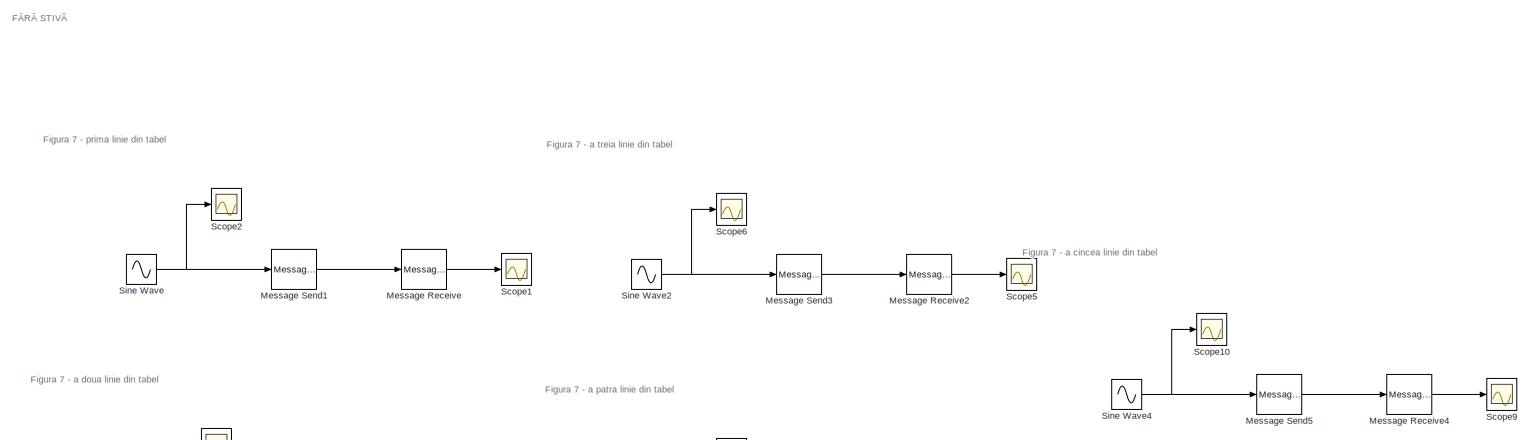
[diagram: root canvas - part 1/3, full width, top band]
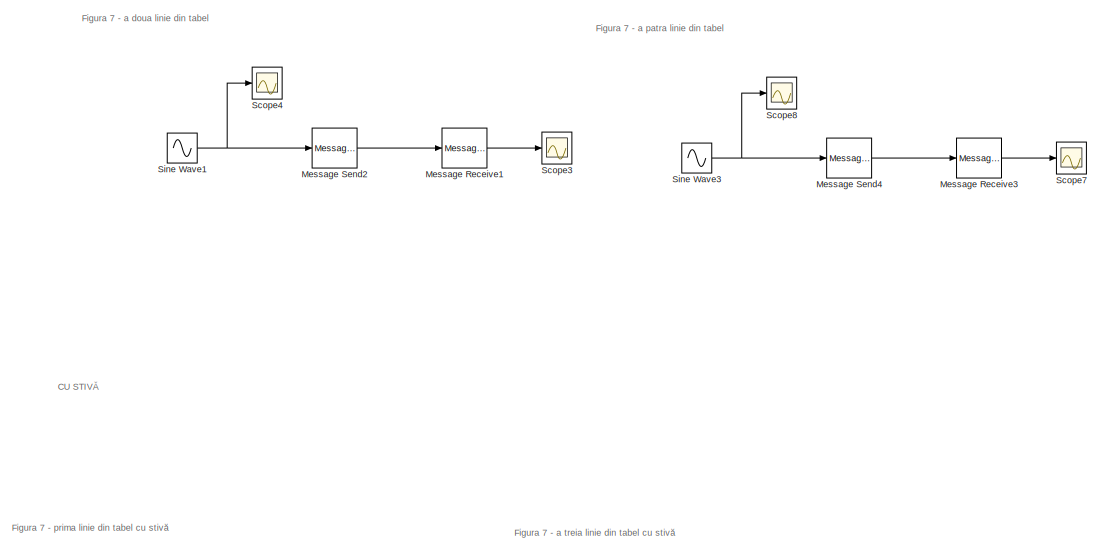
[diagram: root canvas - part 2/3, central region]
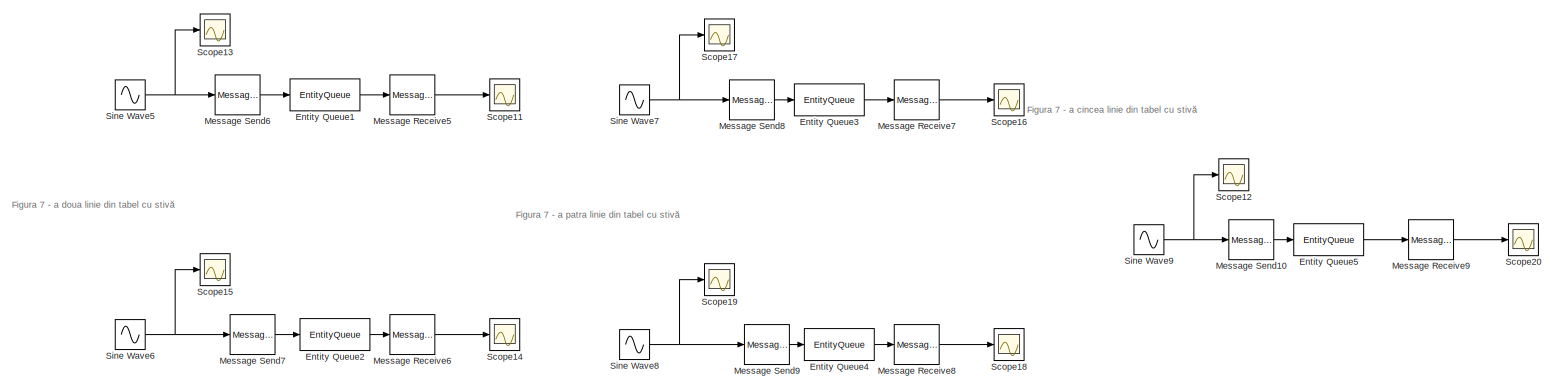
[diagram: root canvas - part 3/3, full width, bottom band]
MODEL slx_587eda505b24
KIND model
CONFIG AbsTol = auto
CONFIG FixedStep = auto
CONFIG MaxStep = auto
CONFIG MinStep = auto
CONFIG RelTol = 1e-3
CONFIG SampleTimeConstraint = Unconstrained
CONFIG Solver = VariableStepDiscrete
CONFIG SolverMode = Auto
CONFIG SolverName = VariableStepDiscrete
CONFIG StartTime = 0.0
CONFIG StopTime = 10.0
BLOCK [EntityQueue] Entity Queue1
  InputPortMap = u0
  InputPortMessageModes = m
  OutputPortMap = o5
  OutputPortMessageModes = m
  Ports = [1, 1]
BLOCK [EntityQueue] Entity Queue2
  InputPortMap = u0
  InputPortMessageModes = m
  OutputPortMap = o5
  OutputPortMessageModes = m
  Ports = [1, 1]
BLOCK [EntityQueue] Entity Queue3
  InputPortMap = u0
  InputPortMessageModes = m
  OutputPortMap = o5
  OutputPortMessageModes = m
  Ports = [1, 1]
BLOCK [EntityQueue] Entity Queue4
  InputPortMap = u0
  InputPortMessageModes = m
  OutputPortMap = o5
  OutputPortMessageModes = m
  Ports = [1, 1]
BLOCK [EntityQueue] Entity Queue5
  InputPortMap = u0
  InputPortMessageModes = m
  OutputPortMap = o5
  OutputPortMessageModes = m
  Ports = [1, 1]
BLOCK [MessageReceive] Message Receive
  InputPortMap = u0
  InputPortMessageModes = m
  OutputPortMap = o1
  Ports = [1, 1]
  SampleTime = 0.1
BLOCK [MessageReceive] Message Receive1
  InputPortMap = u0
  InputPortMessageModes = m
  OutputPortMap = o1
  Ports = [1, 1]
  SampleTime = 0.2
BLOCK [MessageReceive] Message Receive2
  InputPortMap = u0
  InputPortMessageModes = m
  OutputPortMap = o1
  Ports = [1, 1]
  QueueLength = 32
  SampleTime = 0.2
BLOCK [MessageReceive] Message Receive3
  InputPortMap = u0
  InputPortMessageModes = m
  OutputPortMap = o1
  Ports = [1, 1]
  SampleTime = 0.2
BLOCK [MessageReceive] Message Receive4
  InputPortMap = u0
  InputPortMessageModes = m
  OutputPortMap = o1
  Ports = [1, 1]
  SampleTime = 0.1
BLOCK [MessageReceive] Message Receive5
  InputPortMap = u0
  InputPortMessageModes = m
  OutputPortMap = o1
  Ports = [1, 1]
  SampleTime = 0.1
BLOCK [MessageReceive] Message Receive6
  InputPortMap = u0
  InputPortMessageModes = m
  OutputPortMap = o1
  Ports = [1, 1]
  SampleTime = 0.2
BLOCK [MessageReceive] Message Receive7
  InputPortMap = u0
  InputPortMessageModes = m
  OutputPortMap = o1
  Ports = [1, 1]
  QueueLength = 32
  SampleTime = 0.2
BLOCK [MessageReceive] Message Receive8
  InputPortMap = u0
  InputPortMessageModes = m
  OutputPortMap = o1
  Ports = [1, 1]
  SampleTime = 0.2
BLOCK [MessageReceive] Message Receive9
  InputPortMap = u0
  InputPortMessageModes = m
  OutputPortMap = o1
  Ports = [1, 1]
  SampleTime = 0.1
BLOCK [MessageSend] Message Send1
  InputPortMap = u1
  OutputPortMessageModes = m
  Ports = [1, 1]
BLOCK [MessageSend] Message Send10
  InputPortMap = u1
  OutputPortMessageModes = m
  Ports = [1, 1]
BLOCK [MessageSend] Message Send2
  InputPortMap = u1
  OutputPortMessageModes = m
  Ports = [1, 1]
BLOCK [MessageSend] Message Send3
  InputPortMap = u1
  OutputPortMessageModes = m
  Ports = [1, 1]
BLOCK [MessageSend] Message Send4
  InputPortMap = u1
  OutputPortMessageModes = m
  Ports = [1, 1]
BLOCK [MessageSend] Message Send5
  InputPortMap = u1
  OutputPortMessageModes = m
  Ports = [1, 1]
BLOCK [MessageSend] Message Send6
  InputPortMap = u1
  OutputPortMessageModes = m
  Ports = [1, 1]
BLOCK [MessageSend] Message Send7
  InputPortMap = u1
  OutputPortMessageModes = m
  Ports = [1, 1]
BLOCK [MessageSend] Message Send8
  InputPortMap = u1
  OutputPortMessageModes = m
  Ports = [1, 1]
BLOCK [MessageSend] Message Send9
  InputPortMap = u1
  OutputPortMessageModes = m
  Ports = [1, 1]
BLOCK [Scope] Scope1
  Ports = [1]
  ScopeSpecificationString = Simulink.scopes.TimeScopeBlockCfg('CurrentConfiguration', extmgr.ConfigurationSet(extmgr.Configuration('Core','General UI',true),extmgr.Configuration('Core','Source UI',true),extmgr.Configuration('Sources','WiredSimulink',true,'DataLoggingVariableName','ScopeData1'),extmgr.Configuration('Visuals','Time Domain',true,'SerializedDisplays',{struct('MinYLimReal','-0.05438','MaxYLimReal','0.2024','YLabe...<+1534ch>
BLOCK [Scope] Scope10
  Ports = [1]
  ScopeSpecificationString = Simulink.scopes.TimeScopeBlockCfg('CurrentConfiguration', extmgr.ConfigurationSet(extmgr.Configuration('Core','General UI',true),extmgr.Configuration('Core','Source UI',true),extmgr.Configuration('Sources','WiredSimulink',true,'DataLoggingVariableName','ScopeData9'),extmgr.Configuration('Visuals','Time Domain',true,'SerializedDisplays',{struct('MinYLimReal','-1.24563','MaxYLimReal','1.24904','YLab...<+1498ch>
BLOCK [Scope] Scope11
  Ports = [1]
  ScopeSpecificationString = Simulink.scopes.TimeScopeBlockCfg('CurrentConfiguration', extmgr.ConfigurationSet(extmgr.Configuration('Core','General UI',true),extmgr.Configuration('Core','Source UI',true),extmgr.Configuration('Sources','WiredSimulink',true,'DataLoggingVariableName','ScopeData11'),extmgr.Configuration('Visuals','Time Domain',true,'SerializedDisplays',{struct('MinYLimReal','-1.24986','MaxYLimReal','1.24951','YLa...<+1540ch>
BLOCK [Scope] Scope12
  Ports = [1]
  ScopeSpecificationString = Simulink.scopes.TimeScopeBlockCfg('CurrentConfiguration', extmgr.ConfigurationSet(extmgr.Configuration('Core','General UI',true),extmgr.Configuration('Core','Source UI',true),extmgr.Configuration('Sources','WiredSimulink',true,'DataLoggingVariableName','ScopeData12'),extmgr.Configuration('Visuals','Time Domain',true,'SerializedDisplays',{struct('MinYLimReal','-1.24563','MaxYLimReal','1.24904','YLa...<+1525ch>
BLOCK [Scope] Scope13
  Ports = [1]
  ScopeSpecificationString = Simulink.scopes.TimeScopeBlockCfg('CurrentConfiguration', extmgr.ConfigurationSet(extmgr.Configuration('Core','General UI',true),extmgr.Configuration('Core','Source UI',true),extmgr.Configuration('Sources','WiredSimulink',true,'DataLoggingVariableName','ScopeData13'),extmgr.Configuration('Visuals','Time Domain',true,'SerializedDisplays',{struct('MinYLimReal','-1.24986','MaxYLimReal','1.24951','YLa...<+1518ch>
BLOCK [Scope] Scope14
  Ports = [1]
  ScopeSpecificationString = Simulink.scopes.TimeScopeBlockCfg('CurrentConfiguration', extmgr.ConfigurationSet(extmgr.Configuration('Core','General UI',true),extmgr.Configuration('Core','Source UI',true),extmgr.Configuration('Sources','WiredSimulink',true,'DataLoggingVariableName','ScopeData14'),extmgr.Configuration('Visuals','Time Domain',true,'SerializedDisplays',{struct('MinYLimReal','-1.24986','MaxYLimReal','1.24951','YLa...<+1517ch>
BLOCK [Scope] Scope15
  Ports = [1]
  ScopeSpecificationString = Simulink.scopes.TimeScopeBlockCfg('CurrentConfiguration', extmgr.ConfigurationSet(extmgr.Configuration('Core','General UI',true),extmgr.Configuration('Core','Source UI',true),extmgr.Configuration('Sources','WiredSimulink',true,'DataLoggingVariableName','ScopeData15'),extmgr.Configuration('Visuals','Time Domain',true,'SerializedDisplays',{struct('MinYLimReal','-1.24986','MaxYLimReal','1.24951','YLa...<+1497ch>
BLOCK [Scope] Scope16
  Ports = [1]
  ScopeSpecificationString = Simulink.scopes.TimeScopeBlockCfg('CurrentConfiguration', extmgr.ConfigurationSet(extmgr.Configuration('Core','General UI',true),extmgr.Configuration('Core','Source UI',true),extmgr.Configuration('Sources','WiredSimulink',true,'DataLoggingVariableName','ScopeData16'),extmgr.Configuration('Visuals','Time Domain',true,'SerializedDisplays',{struct('MinYLimReal','-1.24986','MaxYLimReal','1.24951','YLa...<+1543ch>
BLOCK [Scope] Scope17
  Ports = [1]
  ScopeSpecificationString = Simulink.scopes.TimeScopeBlockCfg('CurrentConfiguration', extmgr.ConfigurationSet(extmgr.Configuration('Core','General UI',true),extmgr.Configuration('Core','Source UI',true),extmgr.Configuration('Sources','WiredSimulink',true,'DataLoggingVariableName','ScopeData17'),extmgr.Configuration('Visuals','Time Domain',true,'SerializedDisplays',{struct('MinYLimReal','-1.24986','MaxYLimReal','1.24951','YLa...<+1523ch>
BLOCK [Scope] Scope18
  Ports = [1]
  ScopeSpecificationString = Simulink.scopes.TimeScopeBlockCfg('CurrentConfiguration', extmgr.ConfigurationSet(extmgr.Configuration('Core','General UI',true),extmgr.Configuration('Core','Source UI',true),extmgr.Configuration('Sources','WiredSimulink',true,'DataLoggingVariableName','ScopeData18'),extmgr.Configuration('Visuals','Time Domain',true,'SerializedDisplays',{struct('MinYLimReal','-1.24563','MaxYLimReal','1.24904','YLa...<+1517ch>
BLOCK [Scope] Scope19
  Ports = [1]
  ScopeSpecificationString = Simulink.scopes.TimeScopeBlockCfg('CurrentConfiguration', extmgr.ConfigurationSet(extmgr.Configuration('Core','General UI',true),extmgr.Configuration('Core','Source UI',true),extmgr.Configuration('Sources','WiredSimulink',true,'DataLoggingVariableName','ScopeData19'),extmgr.Configuration('Visuals','Time Domain',true,'SerializedDisplays',{struct('MinYLimReal','-1.24563','MaxYLimReal','1.24904','YLa...<+1498ch>
BLOCK [Scope] Scope2
  Ports = [1]
  ScopeSpecificationString = Simulink.scopes.TimeScopeBlockCfg('CurrentConfiguration', extmgr.ConfigurationSet(extmgr.Configuration('Core','General UI',true),extmgr.Configuration('Core','Source UI',true),extmgr.Configuration('Sources','WiredSimulink',true,'DataLoggingVariableName','ScopeData2'),extmgr.Configuration('Visuals','Time Domain',true,'SerializedDisplays',{struct('MinYLimReal','-0.01217','MaxYLimReal','0.12103','YLab...<+1516ch>
BLOCK [Scope] Scope20
  Ports = [1]
  ScopeSpecificationString = Simulink.scopes.TimeScopeBlockCfg('CurrentConfiguration', extmgr.ConfigurationSet(extmgr.Configuration('Core','General UI',true),extmgr.Configuration('Core','Source UI',true),extmgr.Configuration('Sources','WiredSimulink',true,'DataLoggingVariableName','ScopeData20'),extmgr.Configuration('Visuals','Time Domain',true,'SerializedDisplays',{struct('MinYLimReal','-1.24563','MaxYLimReal','1.24904','YLa...<+1543ch>
BLOCK [Scope] Scope3
  Ports = [1]
  ScopeSpecificationString = Simulink.scopes.TimeScopeBlockCfg('CurrentConfiguration', extmgr.ConfigurationSet(extmgr.Configuration('Core','General UI',true),extmgr.Configuration('Core','Source UI',true),extmgr.Configuration('Sources','WiredSimulink',true,'DataLoggingVariableName','ScopeData3'),extmgr.Configuration('Visuals','Time Domain',true,'SerializedDisplays',{struct('MinYLimReal','-1.24986','MaxYLimReal','1.24951','YLab...<+1516ch>
BLOCK [Scope] Scope4
  Ports = [1]
  ScopeSpecificationString = Simulink.scopes.TimeScopeBlockCfg('CurrentConfiguration', extmgr.ConfigurationSet(extmgr.Configuration('Core','General UI',true),extmgr.Configuration('Core','Source UI',true),extmgr.Configuration('Sources','WiredSimulink',true,'DataLoggingVariableName','ScopeData4'),extmgr.Configuration('Visuals','Time Domain',true,'SerializedDisplays',{struct('MinYLimReal','-1.24986','MaxYLimReal','1.24951','YLab...<+1496ch>
BLOCK [Scope] Scope5
  Ports = [1]
  ScopeSpecificationString = Simulink.scopes.TimeScopeBlockCfg('CurrentConfiguration', extmgr.ConfigurationSet(extmgr.Configuration('Core','General UI',true),extmgr.Configuration('Core','Source UI',true),extmgr.Configuration('Sources','WiredSimulink',true,'DataLoggingVariableName','ScopeData5'),extmgr.Configuration('Visuals','Time Domain',true,'SerializedDisplays',{struct('MinYLimReal','-1.24986','MaxYLimReal','1.24951','YLab...<+1516ch>
BLOCK [Scope] Scope6
  Ports = [1]
  ScopeSpecificationString = Simulink.scopes.TimeScopeBlockCfg('CurrentConfiguration', extmgr.ConfigurationSet(extmgr.Configuration('Core','General UI',true),extmgr.Configuration('Core','Source UI',true),extmgr.Configuration('Sources','WiredSimulink',true,'DataLoggingVariableName','ScopeData6'),extmgr.Configuration('Visuals','Time Domain',true,'SerializedDisplays',{struct('MinYLimReal','-1.24986','MaxYLimReal','1.24951','YLab...<+1496ch>
BLOCK [Scope] Scope7
  Ports = [1]
  ScopeSpecificationString = Simulink.scopes.TimeScopeBlockCfg('CurrentConfiguration', extmgr.ConfigurationSet(extmgr.Configuration('Core','General UI',true),extmgr.Configuration('Core','Source UI',true),extmgr.Configuration('Sources','WiredSimulink',true,'DataLoggingVariableName','ScopeData7'),extmgr.Configuration('Visuals','Time Domain',true,'SerializedDisplays',{struct('MinYLimReal','-1.24563','MaxYLimReal','1.24904','YLab...<+1516ch>
BLOCK [Scope] Scope8
  Ports = [1]
  ScopeSpecificationString = Simulink.scopes.TimeScopeBlockCfg('CurrentConfiguration', extmgr.ConfigurationSet(extmgr.Configuration('Core','General UI',true),extmgr.Configuration('Core','Source UI',true),extmgr.Configuration('Sources','WiredSimulink',true,'DataLoggingVariableName','ScopeData8'),extmgr.Configuration('Visuals','Time Domain',true,'SerializedDisplays',{struct('MinYLimReal','-1.24563','MaxYLimReal','1.24904','YLab...<+1497ch>
BLOCK [Scope] Scope9
  Ports = [1]
  ScopeSpecificationString = Simulink.scopes.TimeScopeBlockCfg('CurrentConfiguration', extmgr.ConfigurationSet(extmgr.Configuration('Core','General UI',true),extmgr.Configuration('Core','Source UI',true),extmgr.Configuration('Sources','WiredSimulink',true,'DataLoggingVariableName','ScopeData10'),extmgr.Configuration('Visuals','Time Domain',true,'SerializedDisplays',{struct('MinYLimReal','-1.24563','MaxYLimReal','1.24904','YLa...<+1517ch>
BLOCK [Sin] Sine Wave
  Ports = [0, 1]
  SampleTime = 0.1
BLOCK [Sin] Sine Wave1
  Ports = [0, 1]
  SampleTime = 0.1
BLOCK [Sin] Sine Wave2
  Ports = [0, 1]
  SampleTime = 0.1
BLOCK [Sin] Sine Wave3
  Ports = [0, 1]
  SampleTime = 0.2
BLOCK [Sin] Sine Wave4
  Ports = [0, 1]
  SampleTime = 0.2
BLOCK [Sin] Sine Wave5
  Ports = [0, 1]
  SampleTime = 0.1
BLOCK [Sin] Sine Wave6
  Ports = [0, 1]
  SampleTime = 0.1
BLOCK [Sin] Sine Wave7
  Ports = [0, 1]
  SampleTime = 0.1
BLOCK [Sin] Sine Wave8
  Ports = [0, 1]
  SampleTime = 0.2
BLOCK [Sin] Sine Wave9
  Ports = [0, 1]
  SampleTime = 0.2
ANNOTATION (root): CU STIVĂ
ANNOTATION (root): Figura 7 - a cincea linie din tabel
ANNOTATION (root): Figura 7 - a cincea linie din tabel cu stivă
ANNOTATION (root): Figura 7 - a doua linie din tabel
ANNOTATION (root): Figura 7 - a doua linie din tabel cu stivă
ANNOTATION (root): Figura 7 - a patra linie din tabel
ANNOTATION (root): Figura 7 - a patra linie din tabel cu stivă
ANNOTATION (root): Figura 7 - a treia linie din tabel
ANNOTATION (root): Figura 7 - a treia linie din tabel cu stivă
ANNOTATION (root): Figura 7 - prima linie din tabel
ANNOTATION (root): Figura 7 - prima linie din tabel cu stivă
ANNOTATION (root): FĂRĂ STIVĂ
LINE Entity Queue1:1 -> Message Receive5:1
LINE Entity Queue2:1 -> Message Receive6:1
LINE Entity Queue3:1 -> Message Receive7:1
LINE Entity Queue4:1 -> Message Receive8:1
LINE Entity Queue5:1 -> Message Receive9:1
LINE Message Receive1:1 -> Scope3:1
LINE Message Receive2:1 -> Scope5:1
LINE Message Receive3:1 -> Scope7:1
LINE Message Receive4:1 -> Scope9:1
LINE Message Receive5:1 -> Scope11:1
LINE Message Receive6:1 -> Scope14:1
LINE Message Receive7:1 -> Scope16:1
LINE Message Receive8:1 -> Scope18:1
LINE Message Receive9:1 -> Scope20:1
LINE Message Receive:1 -> Scope1:1
LINE Message Send10:1 -> Entity Queue5:1
LINE Message Send1:1 -> Message Receive:1
LINE Message Send2:1 -> Message Receive1:1
LINE Message Send3:1 -> Message Receive2:1
LINE Message Send4:1 -> Message Receive3:1
LINE Message Send5:1 -> Message Receive4:1
LINE Message Send6:1 -> Entity Queue1:1
LINE Message Send7:1 -> Entity Queue2:1
LINE Message Send8:1 -> Entity Queue3:1
LINE Message Send9:1 -> Entity Queue4:1
NET Sine Wave1:1 -> Message Send2:1, Scope4:1
NET Sine Wave2:1 -> Message Send3:1, Scope6:1
NET Sine Wave3:1 -> Message Send4:1, Scope8:1
NET Sine Wave4:1 -> Message Send5:1, Scope10:1
NET Sine Wave5:1 -> Message Send6:1, Scope13:1
NET Sine Wave6:1 -> Message Send7:1, Scope15:1
NET Sine Wave7:1 -> Message Send8:1, Scope17:1
NET Sine Wave8:1 -> Message Send9:1, Scope19:1
NET Sine Wave9:1 -> Message Send10:1, Scope12:1
NET Sine Wave:1 -> Message Send1:1, Scope2:1
note: NET lines group one-source signal fan-out (src -> all destinations, sorted); 1:1 wires keep LINE
